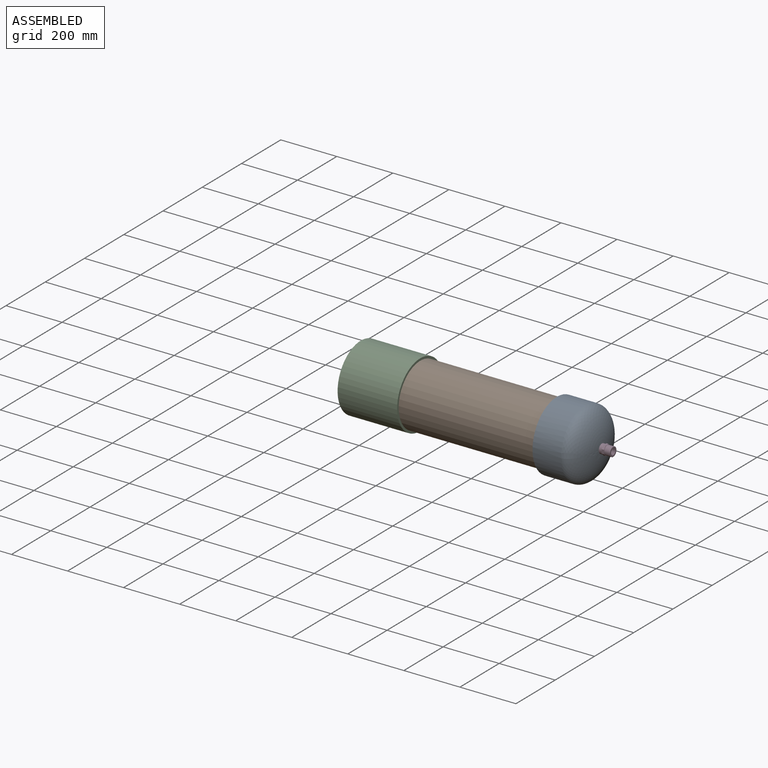
[diagram: assembled view]
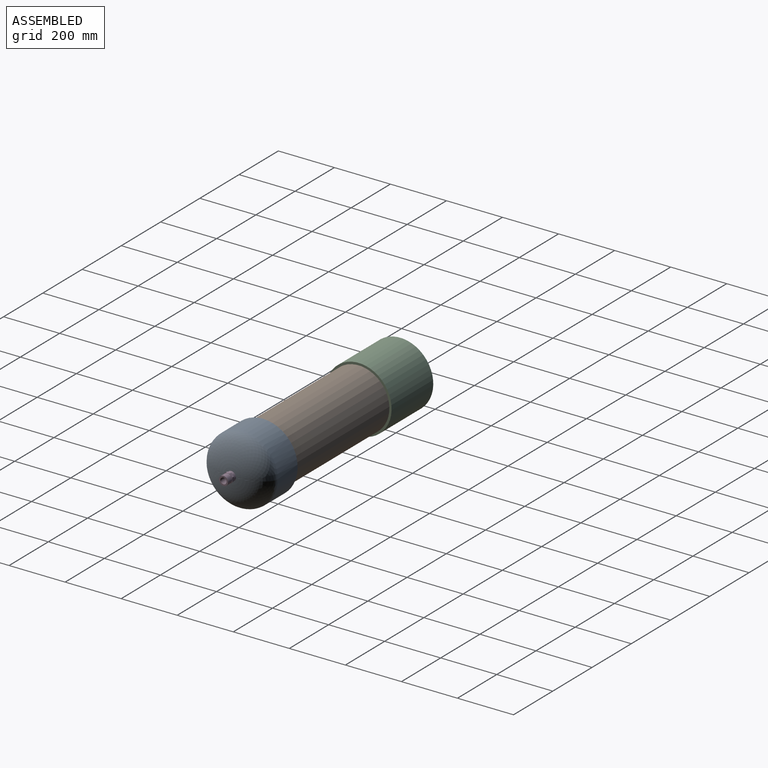
[diagram: assembled view, second angle]
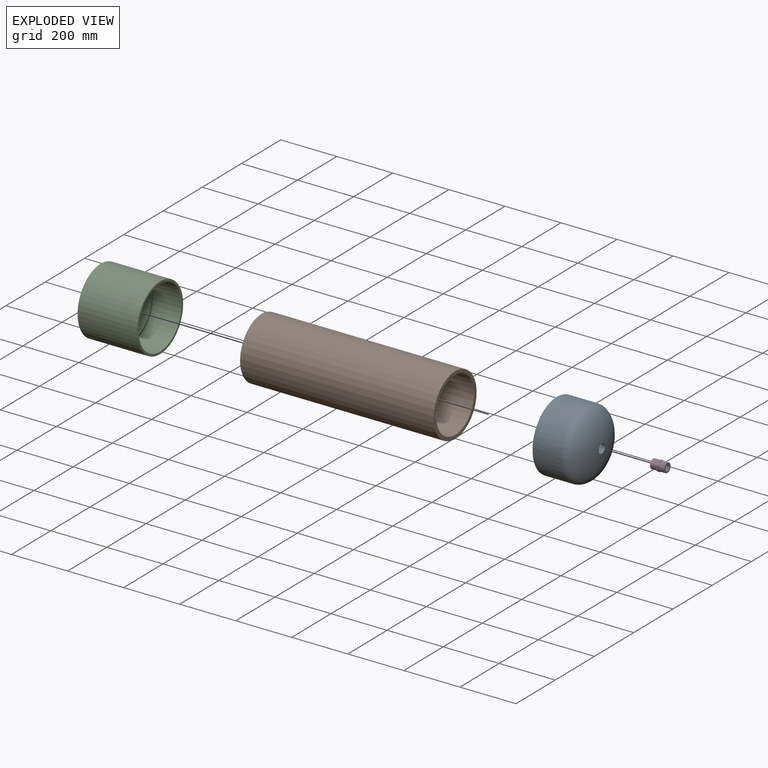
[diagram: exploded view]
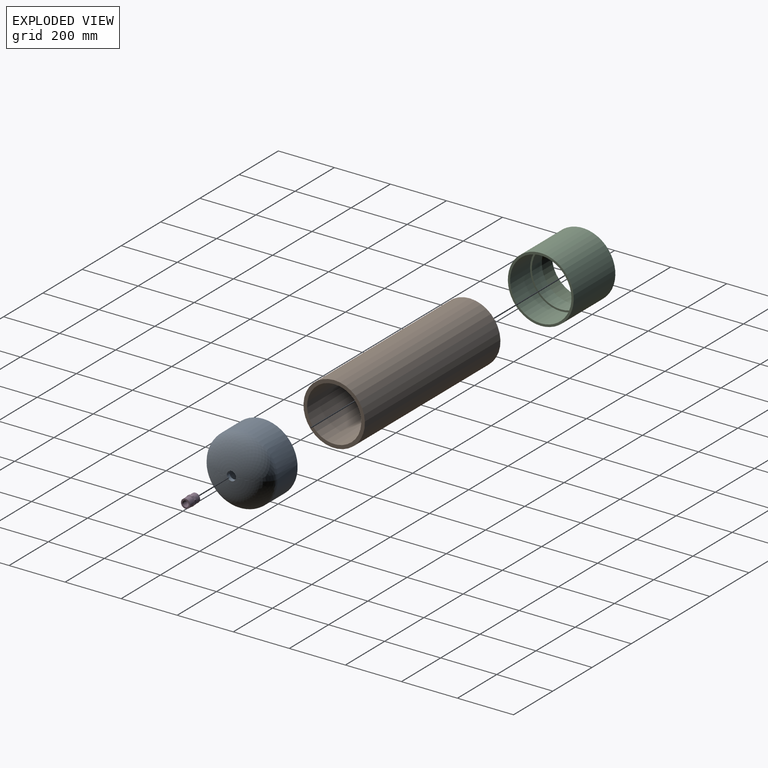
[diagram: exploded view, second angle]
ASSEMBLY  parts=4 mates=3
PART A: 8 faces, bbox 161.4x246.9x246.9 mm
  f0: revolved ~218.69x218.17mm, area 71486.9mm2, adj f3,f5,f7
  f1: revolved ~246.86x246.26mm, area 96943.5mm2, adj f2,f4,f7
  f2: cylinder r=123.43mm len=246.86mm, axis (-1,0,0), area 78793mm2, adj f1,f4,f6
  f3: cone r=109.35mm half-angle=0.3deg, axis (-1,0,0), area 69987.5mm2, adj f0,f5,f6
  f4: revolved ~246.86x123.43mm, area 32314.5mm2, adj f1,f2,f7
  f5: revolved ~218.69x109.35mm, area 23946.9mm2, adj f0,f3,f7
  f6: plane 246.86x246.86mm, normal (-1,0,0), area 9903.6mm2, adj f2,f3
  f7: cylinder r=16.27mm len=32.54mm, axis (1,0,0), area 1438.5mm2, adj f0,f1,f4,f5
PART B: 4 faces, bbox 219.1x219.1x690.9 mm
  f0: cylinder r=96.84mm len=690.88mm, axis (0,0,-1), area 420364.5mm2, adj f2,f3
  f1: cylinder r=109.54mm len=690.88mm, axis (0,0,-1), area 475494.3mm2, adj f2,f3
  f2: plane 219.08x219.08mm, normal (0,0,1), area 8234mm2, adj f0,f1
  f3: plane 219.08x219.08mm, normal (0,0,-1), area 8234mm2, adj f0,f1
PART C: 26 faces, bbox 212.4x234.9x234.9 mm
  f0: plane 234.9x234.9mm, normal (-1,0,0), area 5642.1mm2, adj f1,f25
  f1: cylinder r=109.54mm len=219.08mm, axis (-1,0,0), area 70170.4mm2, adj f0,f2
  f2: plane 219.08x219.08mm, normal (-1,0,0), area 4037.5mm2, adj f1,f3
  f3: cylinder r=103.5mm len=207.01mm, axis (-1,0,0), area 33070.4mm2, adj f2,f4
  f4: plane 213.36x213.36mm, normal (1,0,0), area 2096.5mm2, adj f3,f5
  f5: cone r=106.68mm half-angle=42.3deg, axis (1,0,0), area 2882mm2, adj f4,f6
  f6: cone r=109.54mm half-angle=42.3deg, axis (-1,0,0), area 2882mm2, adj f5,f7
  f7: cone r=106.68mm half-angle=42.3deg, axis (1,0,0), area 2882mm2, adj f6,f8
  f8: cone r=109.54mm half-angle=42.3deg, axis (-1,0,0), area 2882mm2, adj f7,f9
  f9: cone r=106.68mm half-angle=42.3deg, axis (1,0,0), area 2882mm2, adj f8,f10
  f10: cone r=109.54mm half-angle=42.3deg, axis (-1,0,0), area 2882mm2, adj f9,f11
  f11: cone r=106.68mm half-angle=42.3deg, axis (1,0,0), area 2882mm2, adj f10,f12
  f12: cone r=109.54mm half-angle=42.3deg, axis (-1,0,0), area 2882mm2, adj f11,f13
  f13: cone r=106.68mm half-angle=42.3deg, axis (1,0,0), area 2882mm2, adj f12,f14
  f14: cone r=109.54mm half-angle=42.3deg, axis (-1,0,0), area 2882mm2, adj f13,f15
  f15: cone r=106.68mm half-angle=42.3deg, axis (1,0,0), area 2882mm2, adj f14,f16
  f16: cone r=109.54mm half-angle=42.3deg, axis (-1,0,0), area 2882mm2, adj f15,f17
  f17: cone r=106.68mm half-angle=42.3deg, axis (1,0,0), area 2882mm2, adj f16,f18
  f18: cone r=109.54mm half-angle=42.3deg, axis (-1,0,0), area 2882mm2, adj f17,f19
  f19: cone r=106.68mm half-angle=42.3deg, axis (1,0,0), area 2882mm2, adj f18,f20
  f20: cone r=109.54mm half-angle=42.3deg, axis (-1,0,0), area 2882mm2, adj f19,f21
  f21: cone r=106.68mm half-angle=42.3deg, axis (1,0,0), area 2882mm2, adj f20,f22
  f22: cone r=109.54mm half-angle=42.3deg, axis (-1,0,0), area 2882mm2, adj f21,f23
  f23: cone r=106.68mm half-angle=42.3deg, axis (1,0,0), area 2882mm2, adj f22,f24
  f24: plane 234.9x234.9mm, normal (1,0,0), area 5642.1mm2, adj f23,f25
  f25: cylinder r=117.45mm len=234.9mm, axis (-1,0,0), area 156738.4mm2, adj f0,f24
PART D: 27 faces, bbox 55.7x37.3x37.3 mm
  f0: cone r=10.89mm half-angle=45deg, axis (1,0,0), area 72.4mm2, adj f5,f7,f8,f9,f10
  f1: cone r=10.89mm half-angle=45deg, axis (-1,0,0), area 72.4mm2, adj f4,f11,f12,f13,f14
  f2: cylinder r=6.24mm len=12.48mm, axis (-1,0,0), area 249.1mm2, adj f15,f16
  f3: cylinder r=16.38mm len=32.77mm, axis (1,0,0), area 2178.8mm2, adj f7,f17
  f4: cone r=9.98mm half-angle=1.8deg, axis (-1,0,0), area 199.9mm2, adj f1,f13,f14,f16
  f5: cone r=9.98mm half-angle=1.8deg, axis (1,0,0), area 178.5mm2, adj f0,f9,f10,f15
  f6: cylinder r=16.38mm len=32.77mm, axis (1,0,0), area 2178.8mm2, adj f11,f18
  f7: plane 32.77x32.77mm, normal (1,0,0), area 470.3mm2, adj f0,f3
  f8: bspline ~22.1x18.77mm, area 358.4mm2, adj f0,f9,f10,f15
  f9: bspline ~24.36x24.36mm, area 792.9mm2, adj f0,f5,f8,f15
  f10: bspline ~23.67x20.01mm, area 1669.4mm2, adj f0,f5,f8,f15
  f11: plane 32.77x32.77mm, normal (-1,0,0), area 470.3mm2, adj f1,f6
  f12: bspline ~22.1x18.77mm, area 358.4mm2, adj f1,f13,f14,f16
  f13: bspline ~24.36x24.36mm, area 804.6mm2, adj f1,f4,f12,f16
  f14: bspline ~24.6x24.56mm, area 1958.4mm2, adj f1,f4,f12,f16
  f15: plane 19.48x19.3mm, normal (1,0,0), area 158.2mm2, adj f2,f5,f8,f9,f10
  f16: plane 22.26x22.07mm, normal (-1,0,0), area 158.5mm2, adj f2,f4,f12,f13,f14
  f17: plane 34.04x34.04mm, normal (1,0,0), area 116.5mm2, adj f3,f19,f20,f21,f22,f23,f24,f25
  f18: plane 34.04x34.04mm, normal (-1,0,0), area 116.5mm2, adj f6,f19,f20,f21,f22,f23,f24,f25
  f19: plane 14.1x8.47mm, normal (0,1,0), area 119.4mm2, adj f17,f18,f20,f26
  f20: plane 9.97x9.97mm, normal (0,0.71,0.71), area 119.4mm2, adj f17,f18,f19,f21
  f21: plane 14.1x8.47mm, normal (0,0,1), area 119.4mm2, adj f17,f18,f20,f22
  f22: plane 9.97x9.97mm, normal (0,-0.71,0.71), area 119.4mm2, adj f17,f18,f21,f23
  f23: plane 14.1x8.47mm, normal (0,-1,0), area 119.4mm2, adj f17,f18,f22,f24
  f24: plane 9.97x9.97mm, normal (0,-0.71,-0.71), area 119.4mm2, adj f17,f18,f23,f25
  f25: plane 14.1x8.47mm, normal (0,0,-1), area 119.4mm2, adj f17,f18,f24,f26
  f26: plane 9.97x9.97mm, normal (0,0.71,-0.71), area 119.4mm2, adj f17,f18,f19,f25
PLACE A t=(163.89,347.56,449.53)mm
PLACE B rot(axis=(0.71,0,0.71),180deg) t=(-587.32,347.56,449.53)mm
PLACE C rot(axis=(0,1,0),180deg) t=(-485.36,347.56,449.53)mm
PLACE D t=(178.18,347.56,449.53)mm
MATE fastened B.f1 <-> A.f2  axis (1,0,0) through (103.56,347.56,449.53)mm
MATE fastened D.f0 <-> A.f7  axis (1,0,0) through (163.36,347.56,449.53)mm
MATE fastened C.f1 <-> B.f1  axis (1,0,0) through (-587.32,347.56,449.53)mm
